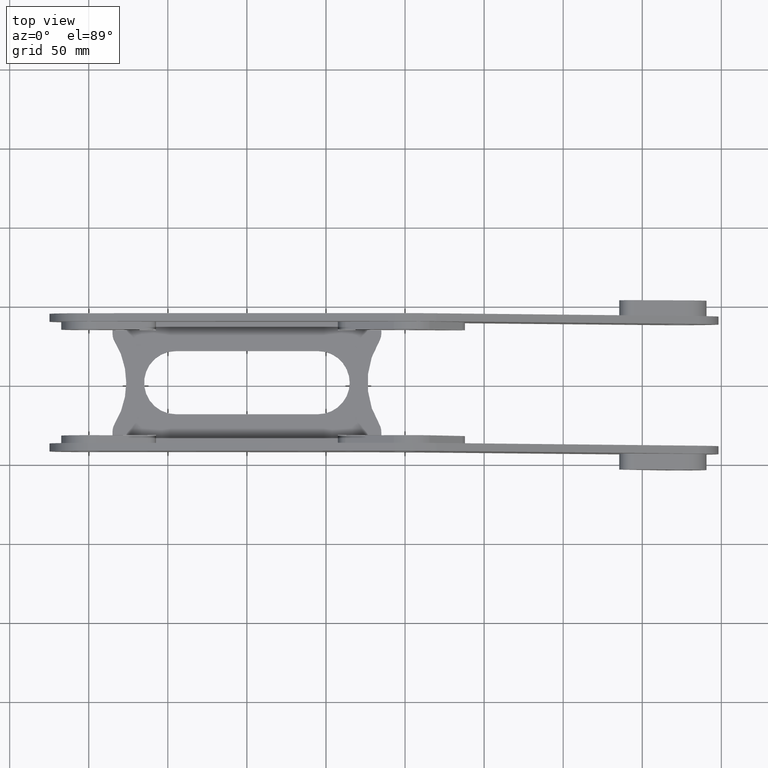
[diagram: clean part render]
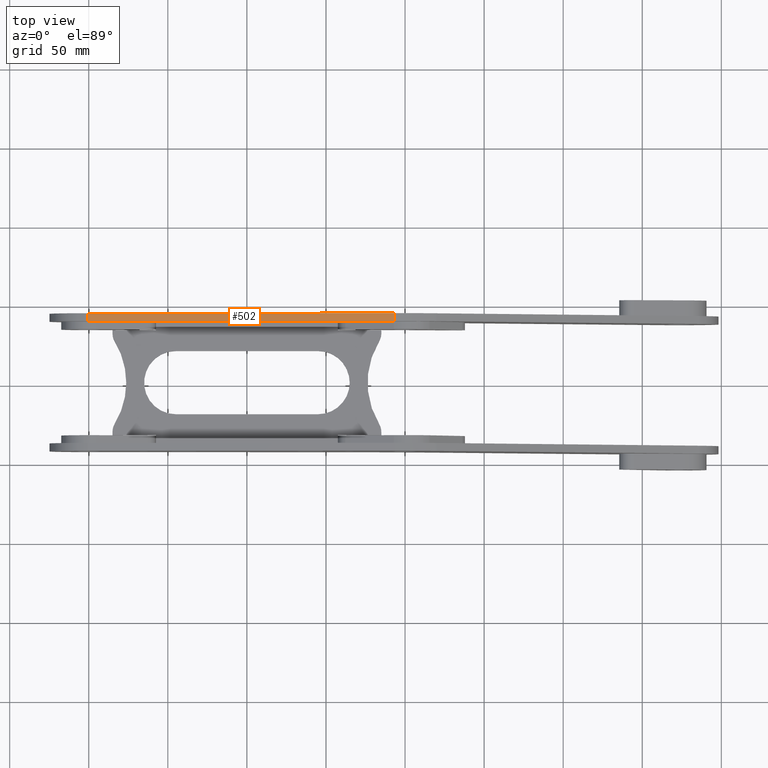
[diagram: same view with one face highlighted and labeled with its STEP entity id]
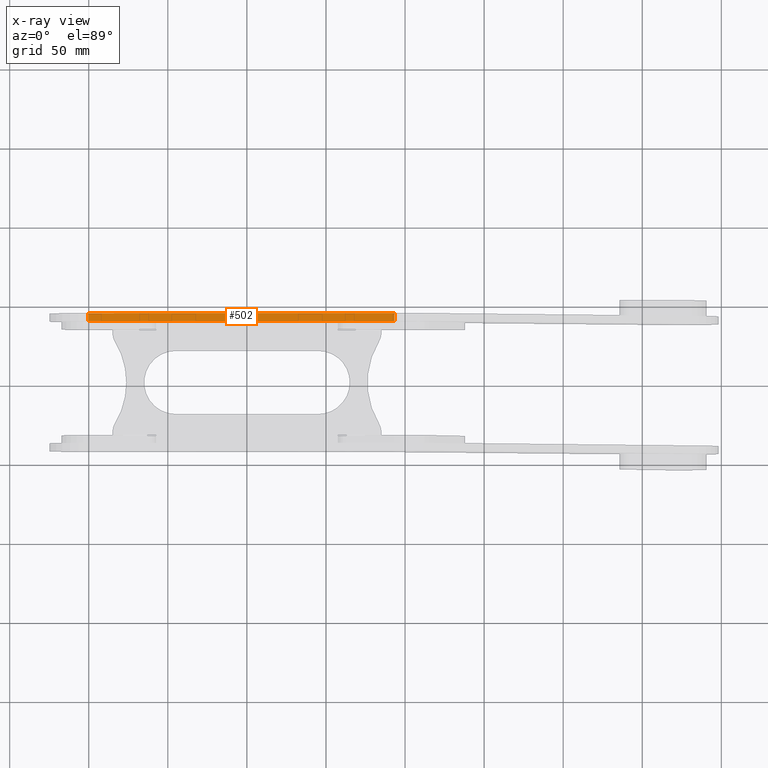
[diagram: x-ray of the same camera — body ghosted, the highlighted face saturated]
A machine part, top view. The second image highlights one B-rep face of the part: STEP entity #502.
The next image is the same camera in x-ray: the body ghosted, the highlighted face saturated — about 0% of this face is hidden behind the body in this view.
In plain terms, the highlighted planar face has unit normal (-0.0175, -0, 0.9998).
Its self-contained STEP definition (entity closure, byte-faithful):
#31 = ORIENTED_EDGE ( 'NONE', *, *, #4309, .F. ) ;
#121 = ORIENTED_EDGE ( 'NONE', *, *, #1718, .T. ) ;
#307 = CARTESIAN_POINT ( 'NONE',  ( -6.664043320742175425, 28.37849987789320139, -5.000000000000000000 ) ) ;
#359 = CARTESIAN_POINT ( 'NONE',  ( -200.4363101609320950, 24.99619237890977530, -5.000000000000000000 ) ) ;
#502 = ADVANCED_FACE ( 'NONE', ( #2222 ), #2510, .T. ) ;
#608 = ORIENTED_EDGE ( 'NONE', *, *, #1168, .T. ) ;
#645 = LINE ( 'NONE', #307, #3905 ) ;
#668 = EDGE_CURVE ( 'NONE', #3238, #2676, #2439, .T. ) ;
#839 = DIRECTION ( 'NONE',  ( -0.9998476951563911586, -0.01745240643728353941, 0.000000000000000000 ) ) ;
#976 = DIRECTION ( 'NONE',  ( 0.000000000000000000, 0.000000000000000000, 1.000000000000000000 ) ) ;
#1168 = EDGE_CURVE ( 'NONE', #1625, #1769, #3680, .T. ) ;
#1393 = CARTESIAN_POINT ( 'NONE',  ( -200.4363101609320950, 24.99619237890977530, 0.000000000000000000 ) ) ;
#1512 = VECTOR ( 'NONE', #976, 1000.000000000000000 ) ;
#1613 = CARTESIAN_POINT ( 'NONE',  ( -200.4363101609320950, 24.99619237890977530, 0.000000000000000000 ) ) ;
#1625 = VERTEX_POINT ( 'NONE', #4094 ) ;
#1638 = DIRECTION ( 'NONE',  ( -0.9998476951563911586, -0.01745240643728353941, -0.000000000000000000 ) ) ;
#1718 = EDGE_CURVE ( 'NONE', #1769, #2676, #3426, .T. ) ;
#1769 = VERTEX_POINT ( 'NONE', #3534 ) ;
#1883 = CARTESIAN_POINT ( 'NONE',  ( -200.4363101609320950, 24.99619237890977530, -5.000000000000000000 ) ) ;
#1997 = DIRECTION ( 'NONE',  ( 0.000000000000000000, 0.000000000000000000, 1.000000000000000000 ) ) ;
#2222 = FACE_OUTER_BOUND ( 'NONE', #3274, .T. ) ;
#2368 = DIRECTION ( 'NONE',  ( -0.9998476951563911586, -0.01745240643728353941, -0.000000000000000000 ) ) ;
#2437 = VECTOR ( 'NONE', #1638, 1000.000000000000114 ) ;
#2439 = LINE ( 'NONE', #1613, #2437 ) ;
#2510 = PLANE ( 'NONE',  #4375 ) ;
#2676 = VERTEX_POINT ( 'NONE', #1393 ) ;
#3069 = VECTOR ( 'NONE', #2368, 1000.000000000000114 ) ;
#3238 = VERTEX_POINT ( 'NONE', #3756 ) ;
#3274 = EDGE_LOOP ( 'NONE', ( #3572, #31, #608, #121 ) ) ;
#3426 = LINE ( 'NONE', #4027, #1512 ) ;
#3534 = CARTESIAN_POINT ( 'NONE',  ( -200.4363101609320950, 24.99619237890977530, -5.000000000000000000 ) ) ;
#3572 = ORIENTED_EDGE ( 'NONE', *, *, #668, .F. ) ;
#3619 = DIRECTION ( 'NONE',  ( -0.01745240643728354288, 0.9998476951563912696, 0.000000000000000000 ) ) ;
#3680 = LINE ( 'NONE', #359, #3069 ) ;
#3756 = CARTESIAN_POINT ( 'NONE',  ( -6.664043320742175425, 28.37849987789320139, 0.000000000000000000 ) ) ;
#3905 = VECTOR ( 'NONE', #1997, 1000.000000000000000 ) ;
#4027 = CARTESIAN_POINT ( 'NONE',  ( -200.4363101609320950, 24.99619237890977530, -5.000000000000000000 ) ) ;
#4094 = CARTESIAN_POINT ( 'NONE',  ( -6.664043320742175425, 28.37849987789320139, -5.000000000000000000 ) ) ;
#4309 = EDGE_CURVE ( 'NONE', #1625, #3238, #645, .T. ) ;
#4375 = AXIS2_PLACEMENT_3D ( 'NONE', #1883, #3619, #839 ) ;